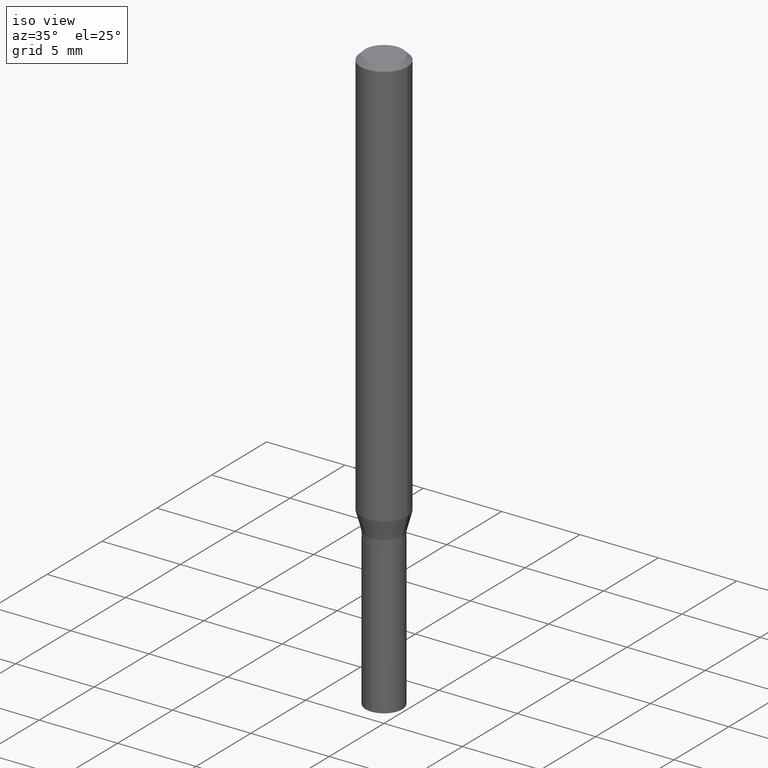
[diagram: clean part render]
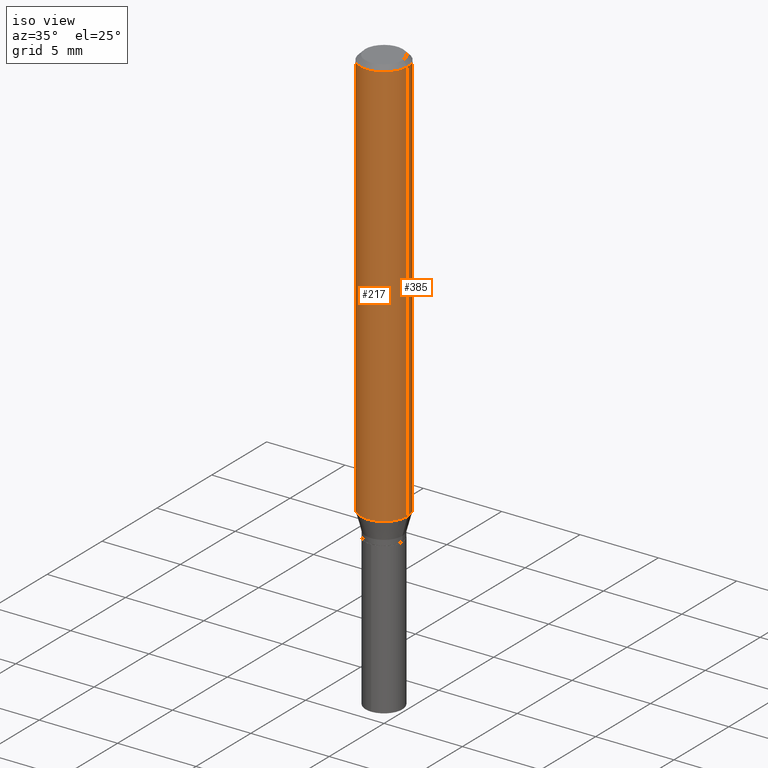
[diagram: same view with one multi-face feature highlighted, each face labeled with its STEP entity id]
A machine part, iso view. The highlighted faces form ONE feature: a constant-radius fillet chain: 2 tangent blend faces with common blend radius 1.4999 mm. The faces share edges in the B-rep.
Their STEP definitions:
[1] entity #385 (Cylinder):
#5 = FACE_OUTER_BOUND ( 'NONE', #347, .T. ) ;
#30 = EDGE_CURVE ( 'NONE', #431, #229, #401, .T. ) ;
#36 = CYLINDRICAL_SURFACE ( 'NONE', #246, 0.05905000000000006771 ) ;
#46 = AXIS2_PLACEMENT_3D ( 'NONE', #468, #234, #168 ) ;
#61 = CARTESIAN_POINT ( 'NONE',  ( -0.05904999999999999832, -1.404094610414935572E-15, -0.01181000000000006871 ) ) ;
#72 = CARTESIAN_POINT ( 'NONE',  ( 0.05905000000000013016, -4.018449743268188111E-15, -1.032829749663117802 ) ) ;
#81 = LINE ( 'NONE', #404, #172 ) ;
#103 = VERTEX_POINT ( 'NONE', #285 ) ;
#104 = EDGE_CURVE ( 'NONE', #103, #229, #81, .T. ) ;
#121 = ORIENTED_EDGE ( 'NONE', *, *, #104, .T. ) ;
#139 = EDGE_CURVE ( 'NONE', #484, #103, #226, .T. ) ;
#152 = CARTESIAN_POINT ( 'NONE',  ( 0.000000000000000000, 0.000000000000000000, 0.000000000000000000 ) ) ;
#168 = DIRECTION ( 'NONE',  ( 1.000000000000000000, -6.982962677686265133E-15, 0.000000000000000000 ) ) ;
#169 = ORIENTED_EDGE ( 'NONE', *, *, #445, .F. ) ;
#172 = VECTOR ( 'NONE', #330, 39.37007874015748143 ) ;
#215 = DIRECTION ( 'NONE',  ( -2.445468806185136877E-29, 3.491481338843145188E-15, 1.000000000000000000 ) ) ;
#218 = DIRECTION ( 'NONE',  ( -2.445468806185136597E-29, 3.491481338843145583E-15, 1.000000000000000000 ) ) ;
#226 = CIRCLE ( 'NONE', #46, 0.05905000000000013016 ) ;
#229 = VERTEX_POINT ( 'NONE', #61 ) ;
#234 = DIRECTION ( 'NONE',  ( -2.445468806185136597E-29, 3.491481338843145583E-15, 1.000000000000000000 ) ) ;
#246 = AXIS2_PLACEMENT_3D ( 'NONE', #152, #218, #382 ) ;
#254 = VECTOR ( 'NONE', #215, 39.37007874015748143 ) ;
#279 = DIRECTION ( 'NONE',  ( -2.445468806185136597E-29, 3.491481338843145583E-15, 1.000000000000000000 ) ) ;
#285 = CARTESIAN_POINT ( 'NONE',  ( -0.05905000000000013016, -3.186530311684473698E-15, -1.032829749663117802 ) ) ;
#330 = DIRECTION ( 'NONE',  ( -2.445468806185136877E-29, 3.491481338843145188E-15, 1.000000000000000000 ) ) ;
#347 = EDGE_LOOP ( 'NONE', ( #400, #121, #456, #169 ) ) ;
#348 = LINE ( 'NONE', #422, #254 ) ;
#382 = DIRECTION ( 'NONE',  ( 1.000000000000000000, -6.982962677686266711E-15, 4.876176775795936353E-29 ) ) ;
#383 = AXIS2_PLACEMENT_3D ( 'NONE', #465, #279, #388 ) ;
#385 = ADVANCED_FACE ( 'NONE', ( #5 ), #36, .T. ) ;
#388 = DIRECTION ( 'NONE',  ( 1.000000000000000000, -6.982962677686266711E-15, 0.000000000000000000 ) ) ;
#400 = ORIENTED_EDGE ( 'NONE', *, *, #139, .T. ) ;
#401 = CIRCLE ( 'NONE', #383, 0.05904999999999999832 ) ;
#404 = CARTESIAN_POINT ( 'NONE',  ( -0.05905000000000006771, 4.195754854663396409E-16, -2.904631170795525045E-30 ) ) ;
#422 = CARTESIAN_POINT ( 'NONE',  ( 0.05905000000000006771, -4.123439461173745257E-16, 2.879382386107503723E-30 ) ) ;
#431 = VERTEX_POINT ( 'NONE', #460 ) ;
#445 = EDGE_CURVE ( 'NONE', #484, #431, #348, .T. ) ;
#456 = ORIENTED_EDGE ( 'NONE', *, *, #30, .F. ) ;
#460 = CARTESIAN_POINT ( 'NONE',  ( 0.05904999999999999832, -4.535783407291118600E-16, -0.01181000000000006871 ) ) ;
#465 = CARTESIAN_POINT ( 'NONE',  ( 2.888098660104663328E-31, -4.123439461173779030E-17, -0.01181000000000006871 ) ) ;
#468 = CARTESIAN_POINT ( 'NONE',  ( 2.525752934901158389E-29, -3.606105797150813980E-15, -1.032829749663117802 ) ) ;
#484 = VERTEX_POINT ( 'NONE', #72 ) ;
[2] entity #217 (Cylinder):
#3 = DIRECTION ( 'NONE',  ( -2.445468806185136597E-29, 3.491481338843145583E-15, 1.000000000000000000 ) ) ;
#18 = AXIS2_PLACEMENT_3D ( 'NONE', #414, #101, #298 ) ;
#57 = CIRCLE ( 'NONE', #108, 0.05905000000000013016 ) ;
#61 = CARTESIAN_POINT ( 'NONE',  ( -0.05904999999999999832, -1.404094610414935572E-15, -0.01181000000000006871 ) ) ;
#72 = CARTESIAN_POINT ( 'NONE',  ( 0.05905000000000013016, -4.018449743268188111E-15, -1.032829749663117802 ) ) ;
#81 = LINE ( 'NONE', #404, #172 ) ;
#88 = ORIENTED_EDGE ( 'NONE', *, *, #445, .T. ) ;
#90 = ORIENTED_EDGE ( 'NONE', *, *, #104, .F. ) ;
#101 = DIRECTION ( 'NONE',  ( -2.445468806185136597E-29, 3.491481338843145583E-15, 1.000000000000000000 ) ) ;
#103 = VERTEX_POINT ( 'NONE', #285 ) ;
#104 = EDGE_CURVE ( 'NONE', #103, #229, #81, .T. ) ;
#108 = AXIS2_PLACEMENT_3D ( 'NONE', #384, #216, #313 ) ;
#164 = AXIS2_PLACEMENT_3D ( 'NONE', #307, #3, #353 ) ;
#172 = VECTOR ( 'NONE', #330, 39.37007874015748143 ) ;
#215 = DIRECTION ( 'NONE',  ( -2.445468806185136877E-29, 3.491481338843145188E-15, 1.000000000000000000 ) ) ;
#216 = DIRECTION ( 'NONE',  ( -2.445468806185136597E-29, 3.491481338843145583E-15, 1.000000000000000000 ) ) ;
#217 = ADVANCED_FACE ( 'NONE', ( #479 ), #407, .T. ) ;
#222 = CIRCLE ( 'NONE', #164, 0.05904999999999999832 ) ;
#229 = VERTEX_POINT ( 'NONE', #61 ) ;
#248 = ORIENTED_EDGE ( 'NONE', *, *, #355, .F. ) ;
#254 = VECTOR ( 'NONE', #215, 39.37007874015748143 ) ;
#285 = CARTESIAN_POINT ( 'NONE',  ( -0.05905000000000013016, -3.186530311684473698E-15, -1.032829749663117802 ) ) ;
#298 = DIRECTION ( 'NONE',  ( 1.000000000000000000, -6.982962677686266711E-15, 4.876176775795936353E-29 ) ) ;
#307 = CARTESIAN_POINT ( 'NONE',  ( 2.888098660104663328E-31, -4.123439461173779030E-17, -0.01181000000000006871 ) ) ;
#313 = DIRECTION ( 'NONE',  ( 1.000000000000000000, -6.982962677686265133E-15, 0.000000000000000000 ) ) ;
#330 = DIRECTION ( 'NONE',  ( -2.445468806185136877E-29, 3.491481338843145188E-15, 1.000000000000000000 ) ) ;
#348 = LINE ( 'NONE', #422, #254 ) ;
#353 = DIRECTION ( 'NONE',  ( 1.000000000000000000, -6.982962677686266711E-15, 0.000000000000000000 ) ) ;
#355 = EDGE_CURVE ( 'NONE', #229, #431, #222, .T. ) ;
#384 = CARTESIAN_POINT ( 'NONE',  ( 2.525752934901158389E-29, -3.606105797150813980E-15, -1.032829749663117802 ) ) ;
#391 = EDGE_CURVE ( 'NONE', #103, #484, #57, .T. ) ;
#392 = EDGE_LOOP ( 'NONE', ( #90, #413, #88, #248 ) ) ;
#404 = CARTESIAN_POINT ( 'NONE',  ( -0.05905000000000006771, 4.195754854663396409E-16, -2.904631170795525045E-30 ) ) ;
#407 = CYLINDRICAL_SURFACE ( 'NONE', #18, 0.05905000000000006771 ) ;
#413 = ORIENTED_EDGE ( 'NONE', *, *, #391, .T. ) ;
#414 = CARTESIAN_POINT ( 'NONE',  ( 0.000000000000000000, 0.000000000000000000, 0.000000000000000000 ) ) ;
#422 = CARTESIAN_POINT ( 'NONE',  ( 0.05905000000000006771, -4.123439461173745257E-16, 2.879382386107503723E-30 ) ) ;
#431 = VERTEX_POINT ( 'NONE', #460 ) ;
#445 = EDGE_CURVE ( 'NONE', #484, #431, #348, .T. ) ;
#460 = CARTESIAN_POINT ( 'NONE',  ( 0.05904999999999999832, -4.535783407291118600E-16, -0.01181000000000006871 ) ) ;
#479 = FACE_OUTER_BOUND ( 'NONE', #392, .T. ) ;
#484 = VERTEX_POINT ( 'NONE', #72 ) ;